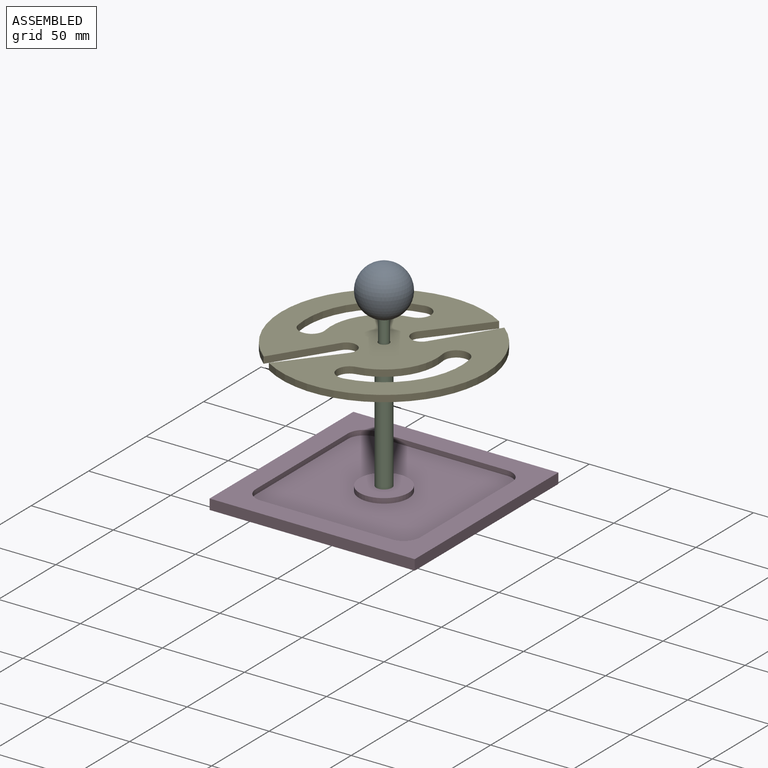
[diagram: assembled view]
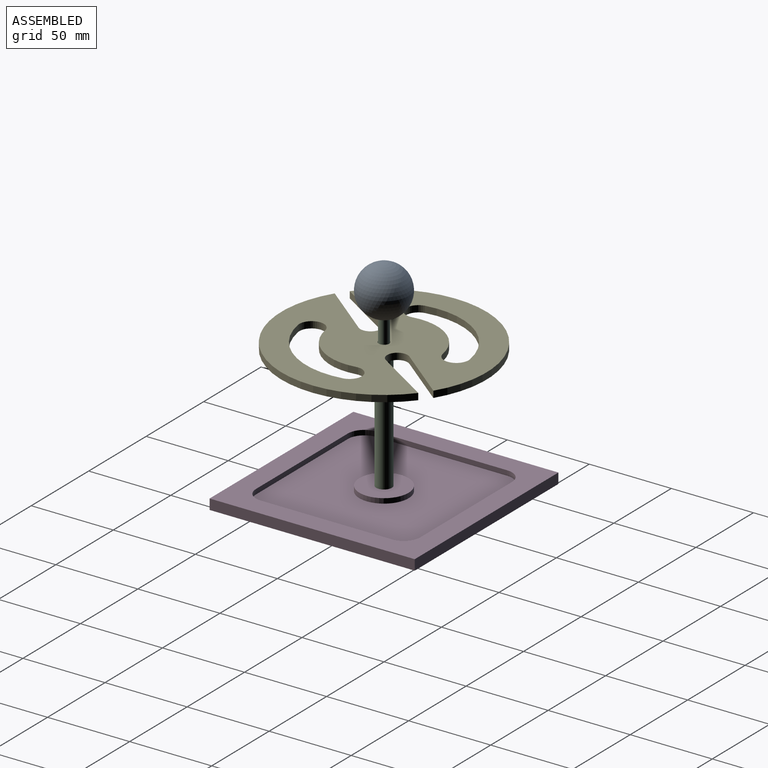
[diagram: assembled view, second angle]
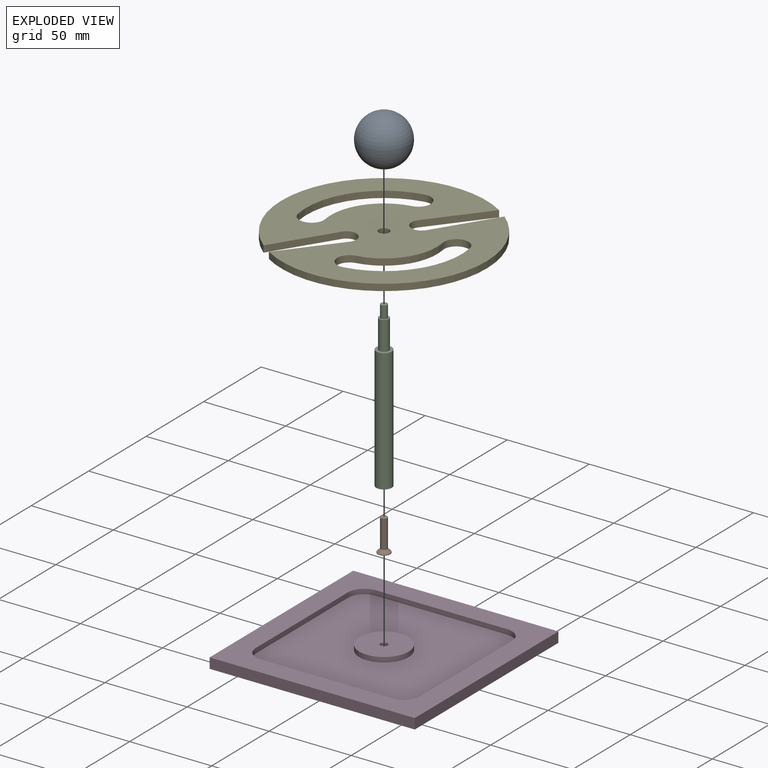
[diagram: exploded view]
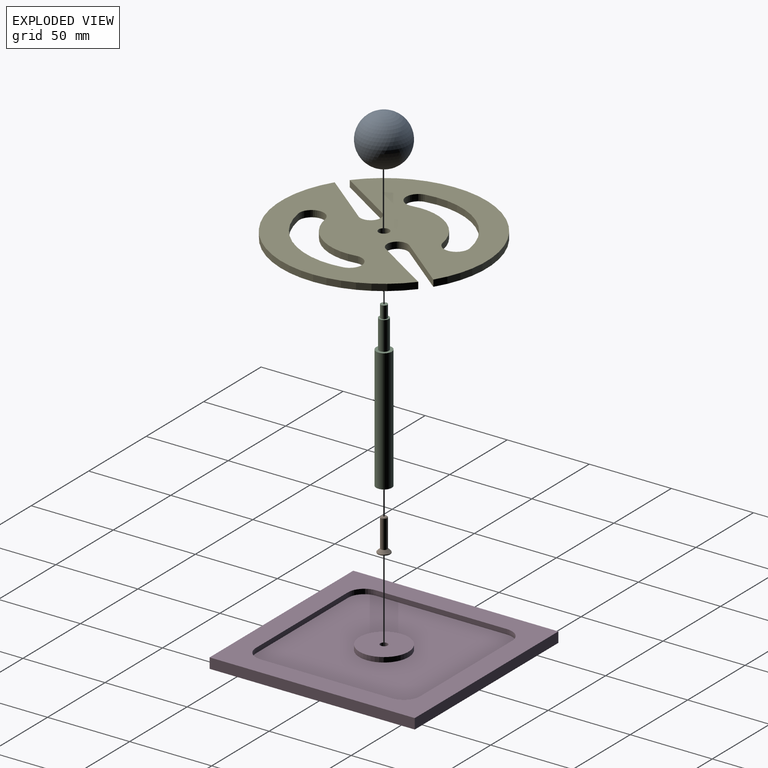
[diagram: exploded view, second angle]
ASSEMBLY  parts=5 mates=8
PART A: 3 faces, bbox 30x30x29.9 mm
  f0: sphere r=15mm, area 2817.8mm2, adj f1
  f1: cylinder r=1.75mm len=14.9mm, axis (0,0,1), area 163.8mm2, adj f0,f2
  f2: plane 3.5x3.5mm, normal (0,0,-1), area 9.6mm2, adj f1
PART B: 13 faces, bbox 7.6x7.6x20 mm
  f0: plane 7.6x7.6mm, normal (0,0,-1), area 31.5mm2, adj f1,f6,f7,f8,f9,f10,f11
  f1: cylinder r=3.8mm len=7.6mm, axis (0,0,-1), area 11.9mm2, adj f0,f2
  f2: cone r=2mm half-angle=45deg, axis (0,0,-1), area 46.4mm2, adj f1,f3
  f3: cylinder r=2mm len=17.2mm, axis (0,0,-1), area 216.1mm2, adj f2,f4
  f4: cone r=1.5mm half-angle=45deg, axis (0,0,-1), area 7.8mm2, adj f3,f5
  f5: plane 3x3mm, normal (0,0,1), area 7.1mm2, adj f4
  f6: plane 2x1.5mm, normal (-0.5,0.87,0), area 3.5mm2, adj f0,f7,f11,f12
  f7: plane 2x1.5mm, normal (0.5,0.87,0), area 3.5mm2, adj f0,f6,f8,f12
  f8: plane 2.31x1.5mm, normal (1,0,0), area 3.5mm2, adj f0,f7,f9,f12
  f9: plane 2x1.5mm, normal (0.5,-0.87,0), area 3.5mm2, adj f0,f8,f10,f12
  f10: plane 2x1.5mm, normal (-0.5,-0.87,0), area 3.5mm2, adj f0,f9,f11,f12
  f11: plane 2.31x1.5mm, normal (-1,0,0), area 3.5mm2, adj f0,f6,f10,f12
  f12: plane 4.62x4mm, normal (0,0,-1), area 13.9mm2, adj f6,f7,f8,f9,f10,f11
PART C: 9 faces, bbox 9.5x9.5x100 mm
  f0: cylinder r=3mm len=17.5mm, axis (0,0,1), area 329.9mm2, adj f3,f7
  f1: cylinder r=4.76mm len=75mm, axis (0,0,-1), area 2243.1mm2, adj f2,f3
  f2: plane 9.52x9.52mm, normal (0,0,-1), area 55.3mm2, adj f1,f5
  f3: plane 9.52x9.52mm, normal (0,0,1), area 42.9mm2, adj f0,f1
  f4: cone r=0mm half-angle=59deg, axis (0,0,-1), area 18.6mm2, adj f5
  f5: cylinder r=2.25mm len=20mm, axis (0,0,-1), area 282.7mm2, adj f2,f4
  f6: cylinder r=2mm len=7.5mm, axis (0,0,1), area 94.2mm2, adj f7,f8
  f7: plane 6x6mm, normal (0,0,1), area 15.7mm2, adj f0,f6
  f8: plane 4x4mm, normal (0,0,1), area 12.6mm2, adj f6
PART D: 19 faces, bbox 125x125x6.3 mm
  f0: plane 30x30mm, normal (0,0,1), area 691mm2, adj f7,f16
  f1: plane 125x6.3mm, normal (0,-1,0), area 787.5mm2, adj f2,f4,f5,f6
  f2: plane 125x6.3mm, normal (1,0,0), area 787.5mm2, adj f1,f3,f5,f6
  f3: plane 125x6.3mm, normal (0,1,0), area 787.5mm2, adj f2,f4,f5,f6
  f4: plane 125x6.3mm, normal (-1,0,0), area 787.5mm2, adj f1,f3,f5,f6
  f5: plane 125x125mm, normal (0,0,1), area 5710.8mm2, adj f1,f2,f3,f4,f9,f10,f11,f12
  f6: plane 125x125mm, normal (0,0,-1), area 15554.1mm2, adj f1,f2,f3,f4,f8
  f7: cylinder r=2.25mm len=4.5mm, axis (0,0,-1), area 53.7mm2, adj f0,f8
  f8: cone r=4.75mm half-angle=45deg, axis (0,0,-1), area 77.8mm2, adj f6,f7
  f9: plane 80x3mm, normal (0,-1,0), area 240mm2, adj f5,f10,f17,f18
  f10: cylinder r=10mm len=10mm, axis (0,0,1), area 47.1mm2, adj f5,f9,f11,f18
  f11: plane 80x3mm, normal (1,0,0), area 240mm2, adj f5,f10,f12,f18
  f12: cylinder r=10mm len=10mm, axis (0,0,1), area 47.1mm2, adj f5,f11,f13,f18
  f13: plane 80x3mm, normal (0,1,0), area 240mm2, adj f5,f12,f14,f18
  f14: cylinder r=10mm len=10mm, axis (0,0,1), area 47.1mm2, adj f5,f13,f15,f18
  f15: plane 80x3mm, normal (-1,0,0), area 240mm2, adj f5,f14,f17,f18
  f16: cylinder r=15mm len=30mm, axis (0,0,1), area 282.7mm2, adj f0,f18
  f17: cylinder r=10mm len=10mm, axis (0,0,1), area 47.1mm2, adj f5,f9,f15,f18
  f18: plane 100x100mm, normal (0,0,1), area 9207.3mm2, adj f9,f10,f11,f12,f13,f14,f15,f16
PART E: 19 faces, bbox 124.7x125x4 mm
  f0: cylinder r=62.5mm len=124.74mm, axis (0,0,-1), area 753.4mm2, adj f1,f2,f13,f16
  f1: plane 125x124.74mm, normal (0,0,1), area 9006.8mm2, adj f0,f3,f4,f5,f6,f7,f8,f9
  f2: plane 125x124.74mm, normal (0,0,-1), area 9006.8mm2, adj f0,f3,f4,f5,f6,f7,f8,f9
  f3: cylinder r=62.5mm len=124.74mm, axis (0,0,-1), area 753.4mm2, adj f1,f2,f15,f17
  f4: cylinder r=3.25mm len=6.5mm, axis (0,0,-1), area 81.7mm2, adj f1,f2
  f5: cylinder r=32.5mm len=45.96mm, axis (0,0,-1), area 204.2mm2, adj f1,f2,f6,f8
  f6: cylinder r=7.5mm len=12.8mm, axis (0,0,-1), area 94.2mm2, adj f1,f2,f5,f7
  f7: cylinder r=47.5mm len=67.18mm, axis (0,0,-1), area 298.5mm2, adj f1,f2,f6,f8
  f8: cylinder r=7.5mm len=12.8mm, axis (0,0,-1), area 94.2mm2, adj f1,f2,f5,f7
  f9: cylinder r=32.5mm len=45.96mm, axis (0,0,-1), area 204.2mm2, adj f1,f2,f10,f12
  f10: cylinder r=7.5mm len=12.8mm, axis (0,0,-1), area 94.2mm2, adj f1,f2,f9,f11
  f11: cylinder r=47.5mm len=67.18mm, axis (0,0,-1), area 298.5mm2, adj f1,f2,f10,f12
  f12: cylinder r=7.5mm len=12.8mm, axis (0,0,-1), area 94.2mm2, adj f1,f2,f9,f11
  f13: plane 42.04x4mm, normal (0.05,1,0), area 168.4mm2, adj f0,f1,f2,f14
  f14: cylinder r=6.25mm len=12.5mm, axis (0,0,-1), area 81.2mm2, adj f1,f2,f13,f15
  f15: plane 42.04x4mm, normal (0.05,-1,0), area 168.4mm2, adj f1,f2,f3,f14
  f16: plane 42.04x4mm, normal (-0.05,1,0), area 168.4mm2, adj f0,f1,f2,f18
  f17: plane 42.04x4mm, normal (-0.05,-1,0), area 168.4mm2, adj f1,f2,f3,f18
  f18: cylinder r=6.25mm len=12.5mm, axis (0,0,-1), area 81.2mm2, adj f1,f2,f16,f17
PLACE A rot(axis=(0,0,-1),68.7deg) t=(0,0,113.8)mm
PLACE B rot(axis=(0,0,-1),90deg) t=(0,0,0)mm
PLACE C rot(axis=(0,0,1),21.3deg) t=(0,0,6.3)mm
PLACE D at identity fixed
PLACE E rot(axis=(0,0,-1),125.5deg) t=(0,0,81.3)mm
MATE planar A.f1 <-> C.f6  axis (0,0,-1) through (0,0,113.8)mm
MATE planar D.f16 <-> B.f0  axis (0,0,-1) through (0,0,0)mm
MATE cylindrical B.f1 <-> D.f7  axis (0,0,-1) through (0,0,10.9)mm
MATE cylindrical C.f0 <-> A.f1  axis (0,0,1) through (0,0,90.05)mm
MATE cylindrical C.f1 <-> D.f7  axis (0,0,-1) through (0,0,6.3)mm
MATE cylindrical E.f4 <-> C.f0  axis (0,0,-1) through (0,0,85.3)mm
MATE planar C.f1 <-> E.f0  axis (0,0,1) through (0,0,81.3)mm
MATE planar C.f1 <-> D.f16  axis (0,0,-1) through (0,0,6.3)mm
